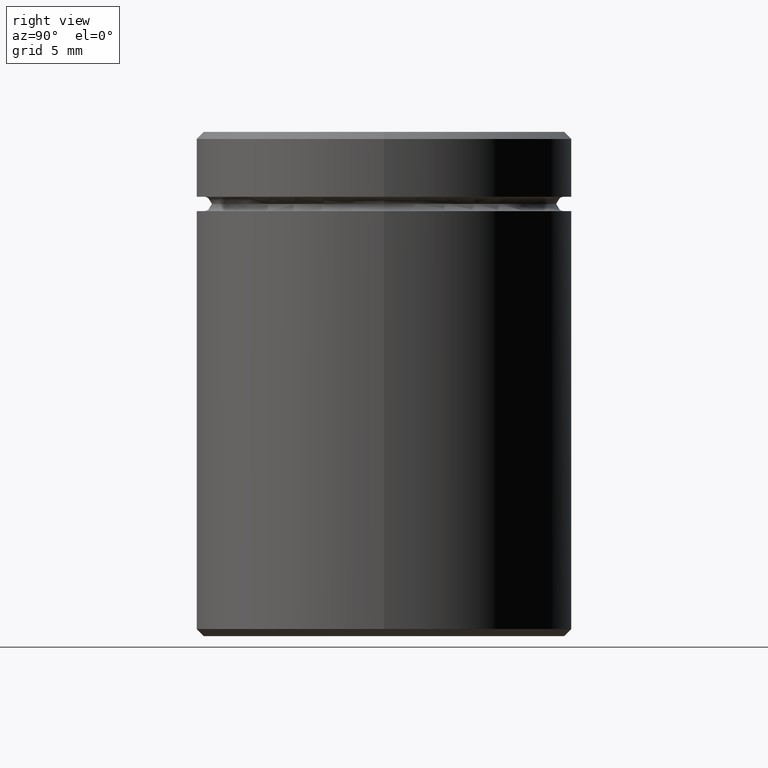
[diagram: clean part render]
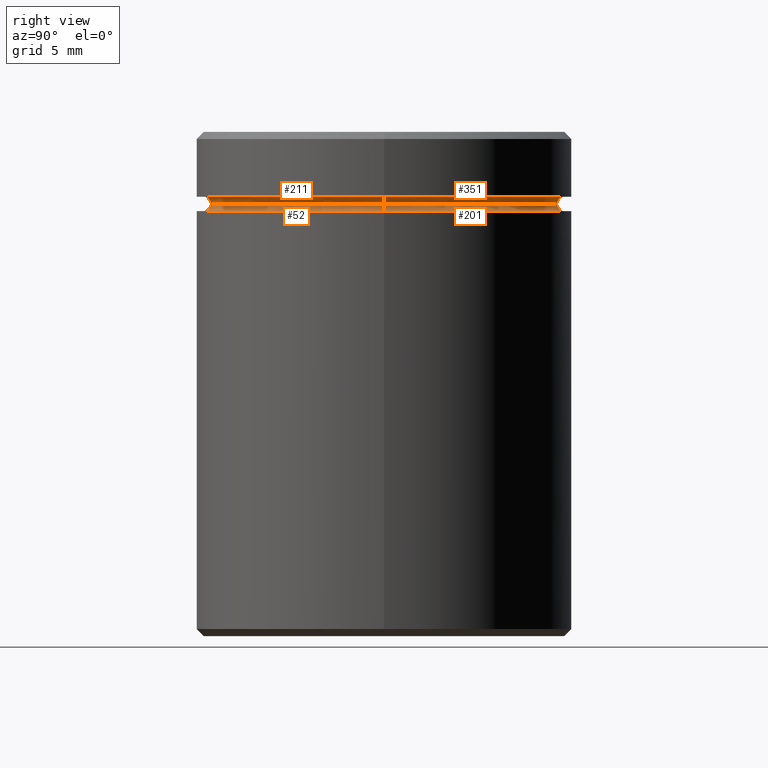
[diagram: same view with one multi-face feature highlighted, each face labeled with its STEP entity id]
A machine part, right view. The highlighted faces form ONE feature: a constant-radius fillet chain: 4 tangent blend faces with common blend radius 0.5 mm. The faces share edges in the B-rep.
Their STEP definitions:
[1] entity #211 (Torus):
#34 = VERTEX_POINT ( 'NONE', #454 ) ;
#54 = ORIENTED_EDGE ( 'NONE', *, *, #557, .T. ) ;
#65 = DIRECTION ( 'NONE',  ( -1.000000000000000000, -1.224646799147353454E-16, 0.000000000000000000 ) ) ;
#75 = EDGE_CURVE ( 'NONE', #355, #34, #541, .T. ) ;
#79 = DIRECTION ( 'NONE',  ( -0.000000000000000000, -0.000000000000000000, 1.000000000000000000 ) ) ;
#88 = DIRECTION ( 'NONE',  ( 0.000000000000000000, 0.000000000000000000, -1.000000000000000000 ) ) ;
#120 = CARTESIAN_POINT ( 'NONE',  ( -12.50000000000000000, 0.000000000000000000, -5.000000000000000888 ) ) ;
#147 = CARTESIAN_POINT ( 'NONE',  ( -12.50000000000000000, 0.000000000000000000, -4.500000000000000888 ) ) ;
#164 = DIRECTION ( 'NONE',  ( -1.000000000000000000, 0.000000000000000000, 0.000000000000000000 ) ) ;
#177 = CARTESIAN_POINT ( 'NONE',  ( 0.000000000000000000, 0.000000000000000000, -5.000000000000000888 ) ) ;
#185 = CIRCLE ( 'NONE', #359, 12.50000000000000000 ) ;
#211 = ADVANCED_FACE ( 'NONE', ( #264 ), #542, .F. ) ;
#219 = VERTEX_POINT ( 'NONE', #147 ) ;
#231 = CARTESIAN_POINT ( 'NONE',  ( 12.00000000000000000, 0.000000000000000000, -4.999999999999999112 ) ) ;
#235 = ORIENTED_EDGE ( 'NONE', *, *, #466, .F. ) ;
#245 = CIRCLE ( 'NONE', #325, 0.5000000000000004441 ) ;
#247 = DIRECTION ( 'NONE',  ( -0.000000000000000000, -1.000000000000000000, -0.000000000000000000 ) ) ;
#264 = FACE_OUTER_BOUND ( 'NONE', #489, .T. ) ;
#303 = CARTESIAN_POINT ( 'NONE',  ( 0.000000000000000000, 0.000000000000000000, -4.999999999999999112 ) ) ;
#325 = AXIS2_PLACEMENT_3D ( 'NONE', #120, #247, #425 ) ;
#340 = DIRECTION ( 'NONE',  ( 1.000000000000000000, 0.000000000000000000, 0.000000000000000000 ) ) ;
#352 = VERTEX_POINT ( 'NONE', #465 ) ;
#355 = VERTEX_POINT ( 'NONE', #231 ) ;
#359 = AXIS2_PLACEMENT_3D ( 'NONE', #468, #79, #164 ) ;
#368 = DIRECTION ( 'NONE',  ( -1.000000000000000000, 0.000000000000000000, 0.000000000000000000 ) ) ;
#380 = AXIS2_PLACEMENT_3D ( 'NONE', #493, #464, #65 ) ;
#404 = AXIS2_PLACEMENT_3D ( 'NONE', #177, #88, #368 ) ;
#425 = DIRECTION ( 'NONE',  ( 0.000000000000000000, 0.000000000000000000, -1.000000000000000000 ) ) ;
#428 = CIRCLE ( 'NONE', #550, 12.00000000000000000 ) ;
#453 = EDGE_CURVE ( 'NONE', #352, #219, #245, .T. ) ;
#454 = CARTESIAN_POINT ( 'NONE',  ( 12.50000000000000000, 1.530808498934191521E-15, -4.500000000000000888 ) ) ;
#464 = DIRECTION ( 'NONE',  ( -1.224646799147353207E-16, 1.000000000000000000, 0.000000000000000000 ) ) ;
#465 = CARTESIAN_POINT ( 'NONE',  ( -12.00000000000000000, 1.500192328955507734E-15, -4.999999999999999112 ) ) ;
#466 = EDGE_CURVE ( 'NONE', #219, #34, #185, .T. ) ;
#468 = CARTESIAN_POINT ( 'NONE',  ( 0.000000000000000000, 0.000000000000000000, -4.500000000000000888 ) ) ;
#476 = DIRECTION ( 'NONE',  ( -0.000000000000000000, -0.000000000000000000, 1.000000000000000000 ) ) ;
#482 = ORIENTED_EDGE ( 'NONE', *, *, #75, .T. ) ;
#489 = EDGE_LOOP ( 'NONE', ( #54, #482, #235, #511 ) ) ;
#493 = CARTESIAN_POINT ( 'NONE',  ( 12.50000000000000000, 1.530808498934191521E-15, -5.000000000000000888 ) ) ;
#511 = ORIENTED_EDGE ( 'NONE', *, *, #453, .F. ) ;
#541 = CIRCLE ( 'NONE', #380, 0.5000000000000004441 ) ;
#542 = TOROIDAL_SURFACE ( 'NONE', #404, 12.50000000000000000, 0.5000000000000000000 ) ;
#550 = AXIS2_PLACEMENT_3D ( 'NONE', #303, #476, #340 ) ;
#557 = EDGE_CURVE ( 'NONE', #352, #355, #428, .T. ) ;
[2] entity #351 (Torus):
#13 = DIRECTION ( 'NONE',  ( 1.000000000000000000, 0.000000000000000000, 0.000000000000000000 ) ) ;
#15 = CARTESIAN_POINT ( 'NONE',  ( 0.000000000000000000, 0.000000000000000000, -5.000000000000000888 ) ) ;
#22 = DIRECTION ( 'NONE',  ( -0.000000000000000000, -0.000000000000000000, 1.000000000000000000 ) ) ;
#27 = EDGE_CURVE ( 'NONE', #355, #352, #338, .T. ) ;
#34 = VERTEX_POINT ( 'NONE', #454 ) ;
#56 = FACE_OUTER_BOUND ( 'NONE', #126, .T. ) ;
#60 = CARTESIAN_POINT ( 'NONE',  ( 0.000000000000000000, 0.000000000000000000, -4.999999999999999112 ) ) ;
#65 = DIRECTION ( 'NONE',  ( -1.000000000000000000, -1.224646799147353454E-16, 0.000000000000000000 ) ) ;
#75 = EDGE_CURVE ( 'NONE', #355, #34, #541, .T. ) ;
#98 = CIRCLE ( 'NONE', #554, 12.50000000000000000 ) ;
#111 = CARTESIAN_POINT ( 'NONE',  ( 0.000000000000000000, 0.000000000000000000, -4.500000000000000888 ) ) ;
#120 = CARTESIAN_POINT ( 'NONE',  ( -12.50000000000000000, 0.000000000000000000, -5.000000000000000888 ) ) ;
#126 = EDGE_LOOP ( 'NONE', ( #364, #419, #535, #500 ) ) ;
#147 = CARTESIAN_POINT ( 'NONE',  ( -12.50000000000000000, 0.000000000000000000, -4.500000000000000888 ) ) ;
#191 = AXIS2_PLACEMENT_3D ( 'NONE', #60, #234, #13 ) ;
#215 = AXIS2_PLACEMENT_3D ( 'NONE', #15, #502, #544 ) ;
#219 = VERTEX_POINT ( 'NONE', #147 ) ;
#231 = CARTESIAN_POINT ( 'NONE',  ( 12.00000000000000000, 0.000000000000000000, -4.999999999999999112 ) ) ;
#234 = DIRECTION ( 'NONE',  ( -0.000000000000000000, -0.000000000000000000, 1.000000000000000000 ) ) ;
#245 = CIRCLE ( 'NONE', #325, 0.5000000000000004441 ) ;
#247 = DIRECTION ( 'NONE',  ( -0.000000000000000000, -1.000000000000000000, -0.000000000000000000 ) ) ;
#325 = AXIS2_PLACEMENT_3D ( 'NONE', #120, #247, #425 ) ;
#338 = CIRCLE ( 'NONE', #191, 12.00000000000000000 ) ;
#351 = ADVANCED_FACE ( 'NONE', ( #56 ), #462, .F. ) ;
#352 = VERTEX_POINT ( 'NONE', #465 ) ;
#355 = VERTEX_POINT ( 'NONE', #231 ) ;
#364 = ORIENTED_EDGE ( 'NONE', *, *, #75, .F. ) ;
#375 = EDGE_CURVE ( 'NONE', #34, #219, #98, .T. ) ;
#380 = AXIS2_PLACEMENT_3D ( 'NONE', #493, #464, #65 ) ;
#418 = DIRECTION ( 'NONE',  ( -1.000000000000000000, 0.000000000000000000, 0.000000000000000000 ) ) ;
#419 = ORIENTED_EDGE ( 'NONE', *, *, #27, .T. ) ;
#425 = DIRECTION ( 'NONE',  ( 0.000000000000000000, 0.000000000000000000, -1.000000000000000000 ) ) ;
#453 = EDGE_CURVE ( 'NONE', #352, #219, #245, .T. ) ;
#454 = CARTESIAN_POINT ( 'NONE',  ( 12.50000000000000000, 1.530808498934191521E-15, -4.500000000000000888 ) ) ;
#462 = TOROIDAL_SURFACE ( 'NONE', #215, 12.50000000000000000, 0.5000000000000000000 ) ;
#464 = DIRECTION ( 'NONE',  ( -1.224646799147353207E-16, 1.000000000000000000, 0.000000000000000000 ) ) ;
#465 = CARTESIAN_POINT ( 'NONE',  ( -12.00000000000000000, 1.500192328955507734E-15, -4.999999999999999112 ) ) ;
#493 = CARTESIAN_POINT ( 'NONE',  ( 12.50000000000000000, 1.530808498934191521E-15, -5.000000000000000888 ) ) ;
#500 = ORIENTED_EDGE ( 'NONE', *, *, #375, .F. ) ;
#502 = DIRECTION ( 'NONE',  ( 0.000000000000000000, 0.000000000000000000, -1.000000000000000000 ) ) ;
#535 = ORIENTED_EDGE ( 'NONE', *, *, #453, .T. ) ;
#541 = CIRCLE ( 'NONE', #380, 0.5000000000000004441 ) ;
#544 = DIRECTION ( 'NONE',  ( -1.000000000000000000, 0.000000000000000000, 0.000000000000000000 ) ) ;
#554 = AXIS2_PLACEMENT_3D ( 'NONE', #111, #22, #418 ) ;
[3] entity #201 (Torus):
#6 = VERTEX_POINT ( 'NONE', #184 ) ;
#13 = DIRECTION ( 'NONE',  ( 1.000000000000000000, 0.000000000000000000, 0.000000000000000000 ) ) ;
#20 = DIRECTION ( 'NONE',  ( 0.000000000000000000, 0.000000000000000000, -1.000000000000000000 ) ) ;
#27 = EDGE_CURVE ( 'NONE', #355, #352, #338, .T. ) ;
#36 = CIRCLE ( 'NONE', #163, 0.5000000000000004441 ) ;
#39 = DIRECTION ( 'NONE',  ( 0.000000000000000000, 0.000000000000000000, -1.000000000000000000 ) ) ;
#60 = CARTESIAN_POINT ( 'NONE',  ( 0.000000000000000000, 0.000000000000000000, -4.999999999999999112 ) ) ;
#70 = CIRCLE ( 'NONE', #134, 0.5000000000000004441 ) ;
#133 = EDGE_LOOP ( 'NONE', ( #481, #216, #443, #269 ) ) ;
#134 = AXIS2_PLACEMENT_3D ( 'NONE', #360, #534, #540 ) ;
#163 = AXIS2_PLACEMENT_3D ( 'NONE', #412, #420, #20 ) ;
#184 = CARTESIAN_POINT ( 'NONE',  ( 12.50000000000000000, 0.000000000000000000, -5.500000000000000000 ) ) ;
#191 = AXIS2_PLACEMENT_3D ( 'NONE', #60, #234, #13 ) ;
#192 = DIRECTION ( 'NONE',  ( 1.000000000000000000, 0.000000000000000000, 0.000000000000000000 ) ) ;
#201 = ADVANCED_FACE ( 'NONE', ( #212 ), #341, .F. ) ;
#212 = FACE_OUTER_BOUND ( 'NONE', #133, .T. ) ;
#216 = ORIENTED_EDGE ( 'NONE', *, *, #27, .F. ) ;
#231 = CARTESIAN_POINT ( 'NONE',  ( 12.00000000000000000, 0.000000000000000000, -4.999999999999999112 ) ) ;
#234 = DIRECTION ( 'NONE',  ( -0.000000000000000000, -0.000000000000000000, 1.000000000000000000 ) ) ;
#248 = EDGE_CURVE ( 'NONE', #352, #309, #70, .T. ) ;
#252 = CIRCLE ( 'NONE', #288, 12.50000000000000000 ) ;
#265 = EDGE_CURVE ( 'NONE', #309, #6, #252, .T. ) ;
#269 = ORIENTED_EDGE ( 'NONE', *, *, #265, .F. ) ;
#274 = AXIS2_PLACEMENT_3D ( 'NONE', #403, #486, #354 ) ;
#275 = EDGE_CURVE ( 'NONE', #355, #6, #36, .T. ) ;
#288 = AXIS2_PLACEMENT_3D ( 'NONE', #438, #39, #192 ) ;
#293 = CARTESIAN_POINT ( 'NONE',  ( -12.50000000000000000, 1.530808498934191521E-15, -5.500000000000000000 ) ) ;
#309 = VERTEX_POINT ( 'NONE', #293 ) ;
#338 = CIRCLE ( 'NONE', #191, 12.00000000000000000 ) ;
#341 = TOROIDAL_SURFACE ( 'NONE', #274, 12.50000000000000000, 0.5000000000000000000 ) ;
#352 = VERTEX_POINT ( 'NONE', #465 ) ;
#354 = DIRECTION ( 'NONE',  ( 1.000000000000000000, 0.000000000000000000, 0.000000000000000000 ) ) ;
#355 = VERTEX_POINT ( 'NONE', #231 ) ;
#360 = CARTESIAN_POINT ( 'NONE',  ( -12.50000000000000000, 1.530808498934191521E-15, -4.999999999999999112 ) ) ;
#403 = CARTESIAN_POINT ( 'NONE',  ( 0.000000000000000000, 0.000000000000000000, -4.999999999999999112 ) ) ;
#412 = CARTESIAN_POINT ( 'NONE',  ( 12.50000000000000000, 0.000000000000000000, -4.999999999999999112 ) ) ;
#420 = DIRECTION ( 'NONE',  ( 0.000000000000000000, -1.000000000000000000, 0.000000000000000000 ) ) ;
#438 = CARTESIAN_POINT ( 'NONE',  ( 0.000000000000000000, 0.000000000000000000, -5.500000000000000000 ) ) ;
#443 = ORIENTED_EDGE ( 'NONE', *, *, #275, .T. ) ;
#465 = CARTESIAN_POINT ( 'NONE',  ( -12.00000000000000000, 1.500192328955507734E-15, -4.999999999999999112 ) ) ;
#481 = ORIENTED_EDGE ( 'NONE', *, *, #248, .F. ) ;
#486 = DIRECTION ( 'NONE',  ( -0.000000000000000000, -0.000000000000000000, 1.000000000000000000 ) ) ;
#534 = DIRECTION ( 'NONE',  ( 1.224646799147353207E-16, 1.000000000000000000, 0.000000000000000000 ) ) ;
#540 = DIRECTION ( 'NONE',  ( -1.000000000000000000, 1.224646799147353454E-16, 0.000000000000000000 ) ) ;
[4] entity #52 (Torus):
#6 = VERTEX_POINT ( 'NONE', #184 ) ;
#20 = DIRECTION ( 'NONE',  ( 0.000000000000000000, 0.000000000000000000, -1.000000000000000000 ) ) ;
#36 = CIRCLE ( 'NONE', #163, 0.5000000000000004441 ) ;
#41 = ORIENTED_EDGE ( 'NONE', *, *, #290, .F. ) ;
#52 = ADVANCED_FACE ( 'NONE', ( #153 ), #156, .F. ) ;
#70 = CIRCLE ( 'NONE', #134, 0.5000000000000004441 ) ;
#90 = ORIENTED_EDGE ( 'NONE', *, *, #248, .T. ) ;
#93 = EDGE_LOOP ( 'NONE', ( #132, #90, #41, #538 ) ) ;
#132 = ORIENTED_EDGE ( 'NONE', *, *, #557, .F. ) ;
#134 = AXIS2_PLACEMENT_3D ( 'NONE', #360, #534, #540 ) ;
#150 = DIRECTION ( 'NONE',  ( 1.000000000000000000, 0.000000000000000000, 0.000000000000000000 ) ) ;
#153 = FACE_OUTER_BOUND ( 'NONE', #93, .T. ) ;
#155 = CARTESIAN_POINT ( 'NONE',  ( 0.000000000000000000, 0.000000000000000000, -5.500000000000000000 ) ) ;
#156 = TOROIDAL_SURFACE ( 'NONE', #213, 12.50000000000000000, 0.5000000000000000000 ) ;
#163 = AXIS2_PLACEMENT_3D ( 'NONE', #412, #420, #20 ) ;
#184 = CARTESIAN_POINT ( 'NONE',  ( 12.50000000000000000, 0.000000000000000000, -5.500000000000000000 ) ) ;
#213 = AXIS2_PLACEMENT_3D ( 'NONE', #415, #504, #232 ) ;
#231 = CARTESIAN_POINT ( 'NONE',  ( 12.00000000000000000, 0.000000000000000000, -4.999999999999999112 ) ) ;
#232 = DIRECTION ( 'NONE',  ( 1.000000000000000000, 0.000000000000000000, 0.000000000000000000 ) ) ;
#248 = EDGE_CURVE ( 'NONE', #352, #309, #70, .T. ) ;
#275 = EDGE_CURVE ( 'NONE', #355, #6, #36, .T. ) ;
#284 = DIRECTION ( 'NONE',  ( 0.000000000000000000, 0.000000000000000000, -1.000000000000000000 ) ) ;
#290 = EDGE_CURVE ( 'NONE', #6, #309, #423, .T. ) ;
#293 = CARTESIAN_POINT ( 'NONE',  ( -12.50000000000000000, 1.530808498934191521E-15, -5.500000000000000000 ) ) ;
#303 = CARTESIAN_POINT ( 'NONE',  ( 0.000000000000000000, 0.000000000000000000, -4.999999999999999112 ) ) ;
#309 = VERTEX_POINT ( 'NONE', #293 ) ;
#340 = DIRECTION ( 'NONE',  ( 1.000000000000000000, 0.000000000000000000, 0.000000000000000000 ) ) ;
#352 = VERTEX_POINT ( 'NONE', #465 ) ;
#355 = VERTEX_POINT ( 'NONE', #231 ) ;
#360 = CARTESIAN_POINT ( 'NONE',  ( -12.50000000000000000, 1.530808498934191521E-15, -4.999999999999999112 ) ) ;
#412 = CARTESIAN_POINT ( 'NONE',  ( 12.50000000000000000, 0.000000000000000000, -4.999999999999999112 ) ) ;
#415 = CARTESIAN_POINT ( 'NONE',  ( 0.000000000000000000, 0.000000000000000000, -4.999999999999999112 ) ) ;
#420 = DIRECTION ( 'NONE',  ( 0.000000000000000000, -1.000000000000000000, 0.000000000000000000 ) ) ;
#423 = CIRCLE ( 'NONE', #484, 12.50000000000000000 ) ;
#428 = CIRCLE ( 'NONE', #550, 12.00000000000000000 ) ;
#465 = CARTESIAN_POINT ( 'NONE',  ( -12.00000000000000000, 1.500192328955507734E-15, -4.999999999999999112 ) ) ;
#476 = DIRECTION ( 'NONE',  ( -0.000000000000000000, -0.000000000000000000, 1.000000000000000000 ) ) ;
#484 = AXIS2_PLACEMENT_3D ( 'NONE', #155, #284, #150 ) ;
#504 = DIRECTION ( 'NONE',  ( -0.000000000000000000, -0.000000000000000000, 1.000000000000000000 ) ) ;
#534 = DIRECTION ( 'NONE',  ( 1.224646799147353207E-16, 1.000000000000000000, 0.000000000000000000 ) ) ;
#538 = ORIENTED_EDGE ( 'NONE', *, *, #275, .F. ) ;
#540 = DIRECTION ( 'NONE',  ( -1.000000000000000000, 1.224646799147353454E-16, 0.000000000000000000 ) ) ;
#550 = AXIS2_PLACEMENT_3D ( 'NONE', #303, #476, #340 ) ;
#557 = EDGE_CURVE ( 'NONE', #352, #355, #428, .T. ) ;